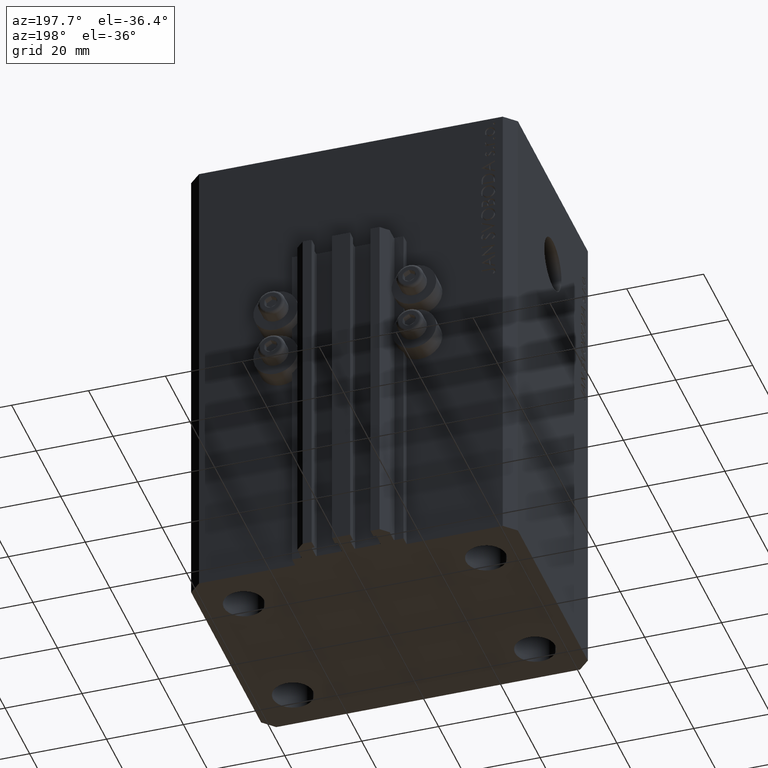
[diagram: clean part render]
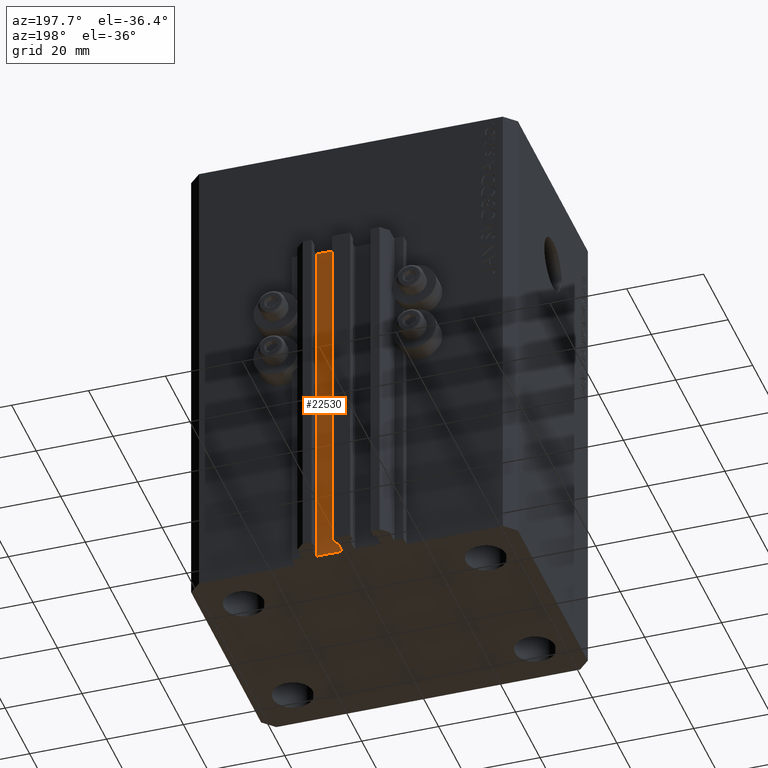
[diagram: same view with one face highlighted and labeled with its STEP entity id]
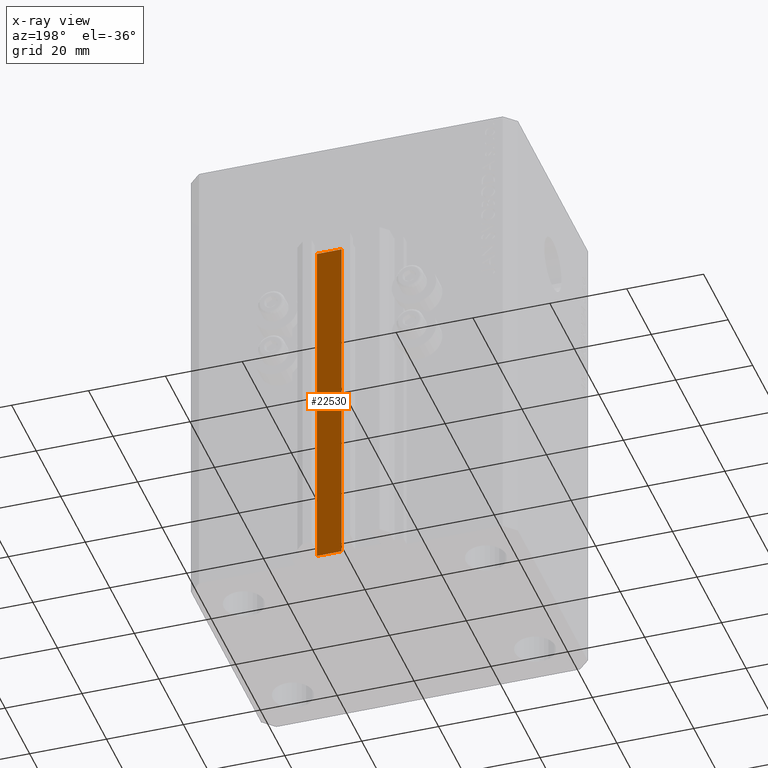
[diagram: x-ray of the same camera — body ghosted, the highlighted face saturated]
A machine part, auxiliary view. The second image highlights one B-rep face of the part: STEP entity #22530.
The next image is the same camera in x-ray: the body ghosted, the highlighted face saturated — about 0% of this face is hidden behind the body in this view.
In plain terms, the highlighted planar face has unit normal (0, 1, 0).
Its self-contained STEP definition (entity closure, byte-faithful):
#574 = CARTESIAN_POINT ( 'NONE',  ( 1.800000000000000933, 33.50000000000000000, -126.0000000000000000 ) ) ;
#1439 = DIRECTION ( 'NONE',  ( 0.000000000000000000, 0.000000000000000000, 1.000000000000000000 ) ) ;
#5265 = AXIS2_PLACEMENT_3D ( 'NONE', #31760, #41780, #23440 ) ;
#6816 = VERTEX_POINT ( 'NONE', #40384 ) ;
#7485 = VERTEX_POINT ( 'NONE', #574 ) ;
#8181 = DIRECTION ( 'NONE',  ( -1.000000000000000000, 0.000000000000000000, 0.000000000000000000 ) ) ;
#8310 = EDGE_CURVE ( 'NONE', #7485, #15532, #31438, .T. ) ;
#8420 = ORIENTED_EDGE ( 'NONE', *, *, #45790, .T. ) ;
#9501 = DIRECTION ( 'NONE',  ( -1.000000000000000000, 0.000000000000000000, 0.000000000000000000 ) ) ;
#9884 = CARTESIAN_POINT ( 'NONE',  ( 1.800000000000000933, 33.50000000000000000, -33.00000000000000000 ) ) ;
#10670 = ORIENTED_EDGE ( 'NONE', *, *, #8310, .T. ) ;
#12978 = ORIENTED_EDGE ( 'NONE', *, *, #13773, .F. ) ;
#13299 = DIRECTION ( 'NONE',  ( 0.000000000000000000, 0.000000000000000000, 1.000000000000000000 ) ) ;
#13773 = EDGE_CURVE ( 'NONE', #6816, #18679, #20087, .T. ) ;
#15532 = VERTEX_POINT ( 'NONE', #9884 ) ;
#16757 = VECTOR ( 'NONE', #9501, 1000.000000000000000 ) ;
#18679 = VERTEX_POINT ( 'NONE', #25102 ) ;
#19356 = EDGE_CURVE ( 'NONE', #18679, #15532, #39290, .T. ) ;
#20087 = LINE ( 'NONE', #34390, #46980 ) ;
#21057 = VECTOR ( 'NONE', #13299, 1000.000000000000000 ) ;
#21067 = VECTOR ( 'NONE', #8181, 1000.000000000000000 ) ;
#22530 = ADVANCED_FACE ( 'NONE', ( #27720 ), #38687, .T. ) ;
#23440 = DIRECTION ( 'NONE',  ( 0.000000000000000000, 0.000000000000000000, 1.000000000000000000 ) ) ;
#25102 = CARTESIAN_POINT ( 'NONE',  ( 8.199999999999999289, 33.50000000000000000, -33.00000000000000000 ) ) ;
#26317 = ORIENTED_EDGE ( 'NONE', *, *, #19356, .F. ) ;
#26548 = CARTESIAN_POINT ( 'NONE',  ( 8.199999999999999289, 33.50000000000000000, -126.0000000000000000 ) ) ;
#27720 = FACE_OUTER_BOUND ( 'NONE', #29029, .T. ) ;
#29029 = EDGE_LOOP ( 'NONE', ( #26317, #12978, #8420, #10670 ) ) ;
#31438 = LINE ( 'NONE', #45963, #21057 ) ;
#31760 = CARTESIAN_POINT ( 'NONE',  ( 8.199999999999999289, 33.50000000000000000, -126.0000000000000000 ) ) ;
#34390 = CARTESIAN_POINT ( 'NONE',  ( 8.199999999999999289, 33.50000000000000000, -126.0000000000000000 ) ) ;
#34403 = LINE ( 'NONE', #26548, #21067 ) ;
#38687 = PLANE ( 'NONE',  #5265 ) ;
#39290 = LINE ( 'NONE', #42162, #16757 ) ;
#40384 = CARTESIAN_POINT ( 'NONE',  ( 8.199999999999999289, 33.50000000000000000, -126.0000000000000000 ) ) ;
#41780 = DIRECTION ( 'NONE',  ( 0.000000000000000000, 1.000000000000000000, -0.000000000000000000 ) ) ;
#42162 = CARTESIAN_POINT ( 'NONE',  ( 8.199999999999999289, 33.50000000000000000, -33.00000000000000000 ) ) ;
#45790 = EDGE_CURVE ( 'NONE', #6816, #7485, #34403, .T. ) ;
#45963 = CARTESIAN_POINT ( 'NONE',  ( 1.800000000000000933, 33.50000000000000000, -126.0000000000000000 ) ) ;
#46980 = VECTOR ( 'NONE', #1439, 1000.000000000000000 ) ;